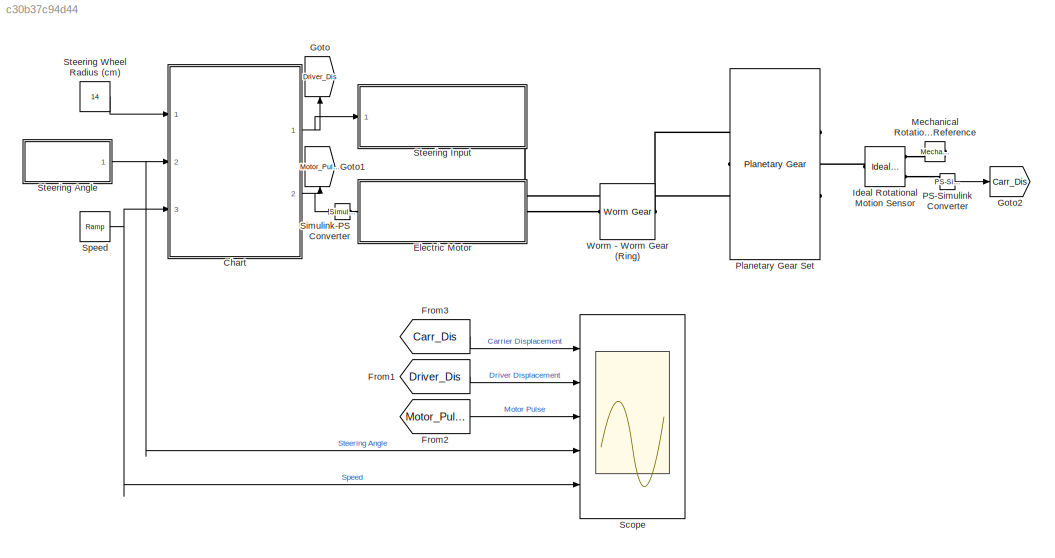
MODEL slx_c30b37c94d44
KIND model
CONFIG AbsTol = auto
CONFIG EnableMultiTasking = off
CONFIG FixedStep = auto
CONFIG MaxStep = auto
CONFIG MinStep = auto
CONFIG RelTol = 1e-3
CONFIG SampleTimeConstraint = Unconstrained
CONFIG SolverName = VariableStepAuto
CONFIG StartTime = 0.0
CONFIG StopTime = 10.0
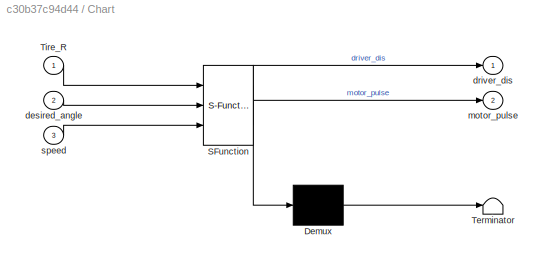
BLOCK [SubSystem] Chart
  ErrorFcn = Stateflow.Translate.translate
  PermitHierarchicalResolution = ExplicitOnly
  Ports = [3, 2]
  RequestExecContextInheritance = off
  SFBlockType = Chart
  TreatAsAtomicUnit = on
BLOCK [Demux] Chart/ Demux 
  Outputs = 1
  Ports = [1, 1]
BLOCK [S-Function] Chart/ SFunction 
  EnableBusSupport = on
  FunctionName = sf_sfun
  PortCounts = [3 3]
  Ports = [3, 3]
  SFcnIsStateOwnerBlock = off
  SFunctionDeploymentMode = off
  Tag = Stateflow S-Function 3
BLOCK [Terminator] Chart/ Terminator 
BLOCK [Inport] Chart/Tire_R
BLOCK [Inport] Chart/desired_angle
  Port = 2
BLOCK [Outport] Chart/driver_dis
BLOCK [Outport] Chart/motor_pulse
  Port = 2
BLOCK [Inport] Chart/speed
  Port = 3
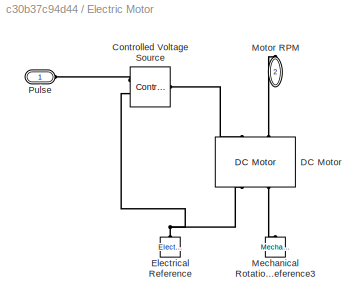
BLOCK [SubSystem] Electric Motor
  Ports = [0, 0, 0, 0, 0, 1, 1]
  RequestExecContextInheritance = off
BLOCK [Reference] Electric Motor/Controlled Voltage Source  REF=fl_lib/Electrical/Electrical Sources/Controlled Voltage
Source
  Ports = [0, 0, 0, 0, 0, 1, 2]
  SourceBlock = fl_lib/Electrical/Electrical Sources/Controlled Voltage\nSource
  SourceProductBaseCode = SS
  SourceType = Controlled Voltage\nSource
BLOCK [Reference] Electric Motor/DC Motor  REF=ee_lib/Electromechanical/Brushed Motors/DC Motor
  NameLocation = right
  Ports = [0, 0, 0, 0, 0, 2, 2]
  SourceBlock = ee_lib/Electromechanical/Brushed Motors/DC Motor
  SourceProductBaseCode = PS
  SourceType = DC Motor
BLOCK [Reference] Electric Motor/Electrical Reference  REF=fl_lib/Electrical/Electrical Elements/Electrical Reference
  NameLocation = right
  Ports = [0, 0, 0, 0, 0, 1]
  SourceBlock = fl_lib/Electrical/Electrical Elements/Electrical Reference
  SourceProductBaseCode = SS
  SourceType = Electrical Reference
BLOCK [Reference] Electric Motor/Mechanical Rotational Reference3  REF=fl_lib/Mechanical/Rotational Elements/Mechanical
Rotational Reference
  NameLocation = right
  Ports = [0, 0, 0, 0, 0, 1]
  SourceBlock = fl_lib/Mechanical/Rotational Elements/Mechanical\nRotational Reference
  SourceProductBaseCode = SS
  SourceType = Mechanical\nRotational Reference
BLOCK [PMIOPort] Electric Motor/Motor RPM
  NameLocation = left
  Port = 2
  Side = Right
BLOCK [PMIOPort] Electric Motor/Pulse
  Side = Left
BLOCK [From] From1
  GotoTag = Driver_Dis
BLOCK [From] From2
  GotoTag = Motor_Pulse
BLOCK [From] From3
  GotoTag = Carr_Dis
BLOCK [Goto] Goto
  GotoTag = Driver_Dis
  NameLocation = right
BLOCK [Goto] Goto1
  GotoTag = Motor_Pulse
  NameLocation = right
BLOCK [Goto] Goto2
  GotoTag = Carr_Dis
BLOCK [Reference] Ideal Rotational Motion Sensor  REF=fl_lib/Mechanical/Mechanical Sensors/Ideal Rotational
Motion Sensor
  Ports = [0, 0, 0, 0, 0, 1, 3]
  SourceBlock = fl_lib/Mechanical/Mechanical Sensors/Ideal Rotational\nMotion Sensor
  SourceProductBaseCode = SS
  SourceType = Ideal Rotational\nMotion Sensor
BLOCK [Reference] Mechanical Rotational Reference  REF=fl_lib/Mechanical/Rotational Elements/Mechanical
Rotational Reference
  NameLocation = top
  Ports = [0, 0, 0, 0, 0, 1]
  SourceBlock = fl_lib/Mechanical/Rotational Elements/Mechanical\nRotational Reference
  SourceProductBaseCode = SS
  SourceType = Mechanical\nRotational Reference
BLOCK [Reference] PS-Simulink Converter  REF=nesl_utility/PS-Simulink
Converter
  Ports = [0, 1, 0, 0, 0, 1]
  SourceBlock = nesl_utility/PS-Simulink\nConverter
  SourceProductBaseCode = SS
  SourceType = PS-Simulink\nConverter
BLOCK [Reference] Planetary Gear Set  REF=sdl_lib/Gears/Planetary Gear
  NameLocation = top
  Ports = [0, 0, 0, 0, 0, 1, 2]
  SourceBlock = sdl_lib/Gears/Planetary Gear
  SourceProductBaseCode = LD
  SourceType = Planetary Gear
BLOCK [Scope] Scope
  Floating = off
  NumInputPorts = 5
  Ports = [5]
  ScopeSpecificationString = Simulink.scopes.TimeScopeBlockCfg('CurrentConfiguration', extmgr.ConfigurationSet(extmgr.Configuration('Core','General UI',true,'FigureColor',[0.8 0.8 0.8]),extmgr.Configuration('Core','Source UI',true),extmgr.Configuration('Sources','WiredSimulink',true),extmgr.Configuration('Visuals','Time Domain',true,'SerializedDisplays',{struct('MinYLimReal','-24.77717','MaxYLimReal','222.99457','YLabelReal',...<+4247ch>
BLOCK [Reference] Simulink-PS Converter  REF=nesl_utility/Simulink-PS
Converter
  Ports = [1, 0, 0, 0, 0, 0, 1]
  SourceBlock = nesl_utility/Simulink-PS\nConverter
  SourceProductBaseCode = SS
  SourceType = Simulink-PS\nConverter
BLOCK [Reference] Speed  REF=simulink/Sources/Ramp
  Ports = [0, 1]
  SourceBlock = simulink/Sources/Ramp
  SourceProductBaseCode = SL
  SourceType = Ramp
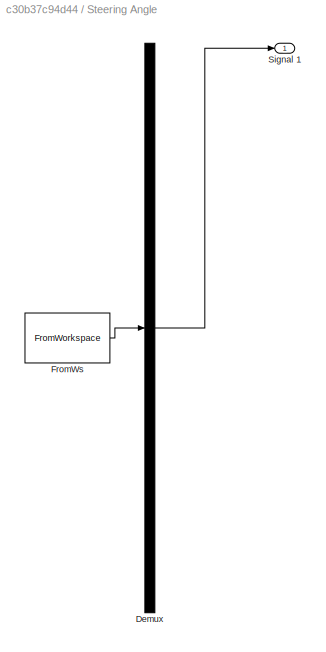
BLOCK [SubSystem] Steering Angle
  ClipboardFcn = sigbuilder_block('clipboard');
  CloseFcn = sigbuilder_block('close');
  ContinueFcn = sigbuilder_block('continue');
  CopyFcn = sigbuilder_block('copy');
  DeleteFcn = sigbuilder_block('delete');
  LoadFcn = sigbuilder_block('load');
  MaskHideContents = on
  ModelCloseFcn = sigbuilder_block('modelClose');
  NameChangeFcn = sigbuilder_block('namechange');
  OpenFcn = sigbuilder_block('open',[437.6 199.2 550.4 400 ]);
  PauseFcn = sigbuilder_block('pause');
  Ports = [0, 1]
  PreSaveFcn = sigbuilder_block('preSave');
  RequestExecContextInheritance = off
  StartFcn = sigbuilder_block('start');
  StopFcn = sigbuilder_block('stop');
  Tag = STV Subsys
BLOCK [Demux] Steering Angle/Demux
  DisplayOption = none
  Outputs = 1
  Ports = [1, 1]
  Tag = STV Demux
BLOCK [FromWorkspace] Steering Angle/FromWs
  Tag = STV FromWs
  VariableName = tuvar
BLOCK [Outport] Steering Angle/Signal 1
  Tag = STV Outport
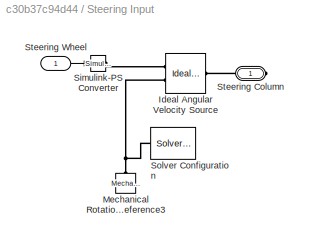
BLOCK [SubSystem] Steering Input
  Ports = [1, 0, 0, 0, 0, 0, 1]
  RequestExecContextInheritance = off
BLOCK [Reference] Steering Input/Ideal Angular Velocity Source  REF=fl_lib/Mechanical/Mechanical Sources/Ideal Angular
Velocity Source
  Ports = [0, 0, 0, 0, 0, 1, 2]
  SourceBlock = fl_lib/Mechanical/Mechanical Sources/Ideal Angular\nVelocity Source
  SourceProductBaseCode = SS
  SourceType = Ideal Angular\nVelocity Source
BLOCK [Reference] Steering Input/Mechanical Rotational Reference3  REF=fl_lib/Mechanical/Rotational Elements/Mechanical
Rotational Reference
  NameLocation = right
  Ports = [0, 0, 0, 0, 0, 1]
  SourceBlock = fl_lib/Mechanical/Rotational Elements/Mechanical\nRotational Reference
  SourceProductBaseCode = SS
  SourceType = Mechanical\nRotational Reference
BLOCK [Reference] Steering Input/Simulink-PS Converter  REF=nesl_utility/Simulink-PS
Converter
  Ports = [1, 0, 0, 0, 0, 0, 1]
  SourceBlock = nesl_utility/Simulink-PS\nConverter
  SourceProductBaseCode = SS
  SourceType = Simulink-PS\nConverter
BLOCK [Reference] Steering Input/Solver Configuration  REF=nesl_utility/Solver
Configuration
  NameLocation = top
  Ports = [0, 0, 0, 0, 0, 0, 1]
  SourceBlock = nesl_utility/Solver\nConfiguration
  SourceProductBaseCode = SS
  SourceType = Solver\nConfiguration
BLOCK [PMIOPort] Steering Input/Steering Column
  Side = Right
BLOCK [Inport] Steering Input/Steering Wheel
BLOCK [Constant] Steering Wheel Radius (cm)
  Value = 14
BLOCK [Reference] Worm - Worm Gear (Ring)  REF=sdl_lib/Gears/Worm Gear
  Ports = [0, 0, 0, 0, 0, 1, 1]
  SourceBlock = sdl_lib/Gears/Worm Gear
  SourceProductBaseCode = LD
  SourceType = Worm Gear
NET Chart:1 -> Goto:1, Steering Input:1
NET Chart:2 -> Goto1:1, Simulink-PS Converter:1
LINE From1:1 -> Scope:2
LINE From2:1 -> Scope:3
LINE From3:1 -> Scope:1
LINE PS-Simulink Converter:1 -> Goto2:1
NET Speed:1 -> Chart:3, Scope:5
NET Steering Angle:1 -> Chart:2, Scope:4
LINE Steering Input/Steering Wheel:1 -> Steering Input/Simulink-PS Converter:1
LINE Steering Wheel Radius (cm):1 -> Chart:1
PLINE Electric Motor/Controlled Voltage Source:LConn1 -- Electric Motor/DC Motor:LConn1
PLINE Electric Motor/Controlled Voltage Source:RConn1 -- Electric Motor/Pulse:RConn1
PNET net1: Electric Motor/Controlled Voltage Source:RConn2 -- Electric Motor/DC Motor:RConn1 -- Electric Motor/Electrical Reference:LConn1
PLINE Electric Motor/DC Motor:LConn2 -- Electric Motor/Motor RPM:RConn1
PLINE Electric Motor/DC Motor:RConn2 -- Electric Motor/Mechanical Rotational Reference3:LConn1
PLINE Electric Motor:LConn1 -- Simulink-PS Converter:RConn1
PLINE Electric Motor:RConn1 -- Worm - Worm Gear (Ring):LConn1
PLINE Ideal Rotational Motion Sensor:LConn1 -- Planetary Gear Set:LConn1
PLINE Ideal Rotational Motion Sensor:RConn1 -- Mechanical Rotational Reference:LConn1
PLINE Ideal Rotational Motion Sensor:RConn3 -- PS-Simulink Converter:LConn1
PLINE Planetary Gear Set:RConn1 -- Worm - Worm Gear (Ring):RConn1
PLINE Planetary Gear Set:RConn2 -- Steering Input:RConn1
PLINE Steering Input/Ideal Angular Velocity Source:LConn1 -- Steering Input/Steering Column:RConn1
PLINE Steering Input/Ideal Angular Velocity Source:RConn1 -- Steering Input/Simulink-PS Converter:RConn1
PNET net2: Steering Input/Ideal Angular Velocity Source:RConn2 -- Steering Input/Mechanical Rotational Reference3:LConn1 -- Steering Input/Solver Configuration:RConn1
note: NET lines group one-source signal fan-out (src -> all destinations, sorted); 1:1 wires keep LINE; PNET lines group multi-terminal physical nets as a canonical sorted terminal list (undirected conserving connections); 2-terminal nets keep the pairwise PLINE form
CHART Chart states=3 transitions=5
  STATE_LABEL 'Assist\ndu:\nhelp_ratio = ((60-speed)/60) * 0.3;\ndriver_angle = floor(desired_angle*(1-help_ratio));\nmotor_angle = ceil(desired_angle*help_ratio);\ndriver_dis = Tire_R*driver_angle*pi/180;\nmotor_dis = Tire_R*motor_angle*pi/180;\nmotor_pulse = 1;'
  STATE_LABEL 'Start'
  STATE_LABEL 'Resist\ndu:\nres_ratio = ((speed-60)/160) * 0.3;\ndriver_angle = floor(desired_angle*(1-res_ratio));\nmotor_angle = ceil(desired_angle*res_ratio);\ndriver_dis = Tire_R*driver_angle*pi/180;\nmotor_dis = Tire_R*motor_angle*pi/180;\nmotor_pulse = -1;'
CHART  states=0 transitions=0
